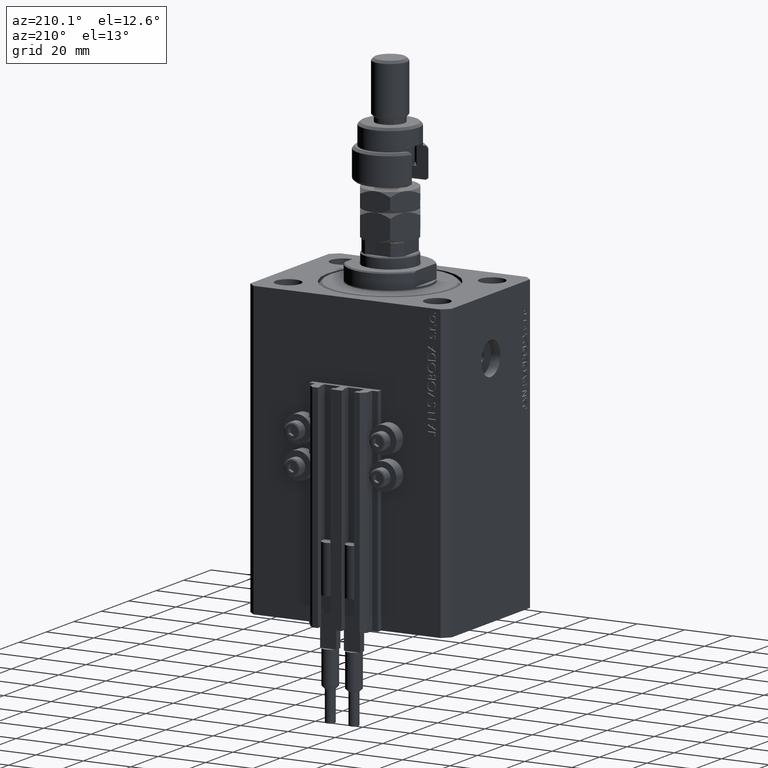
[diagram: clean part render]
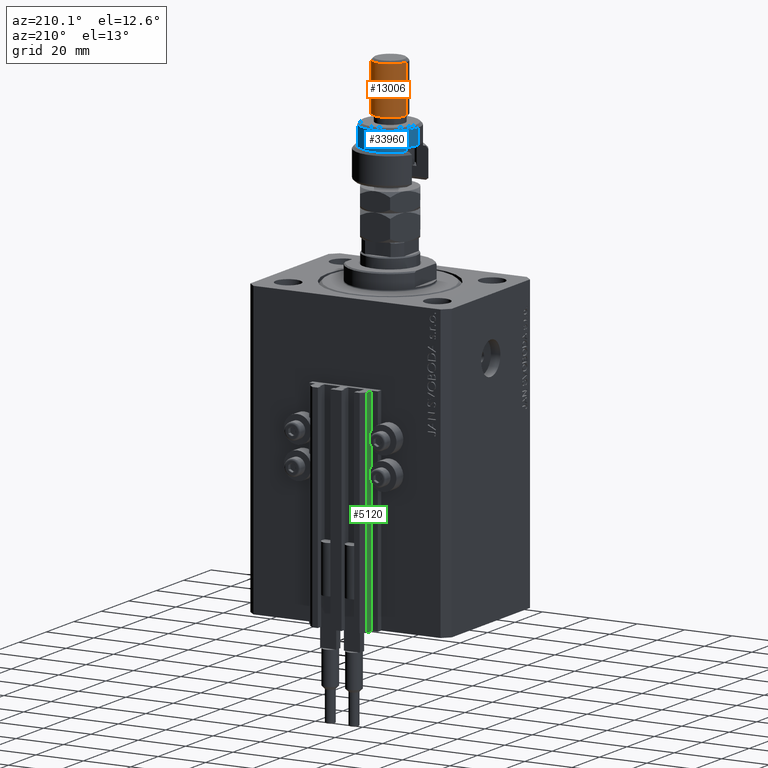
[diagram: same view with three faces highlighted in distinct colors, each labeled with its STEP entity id]
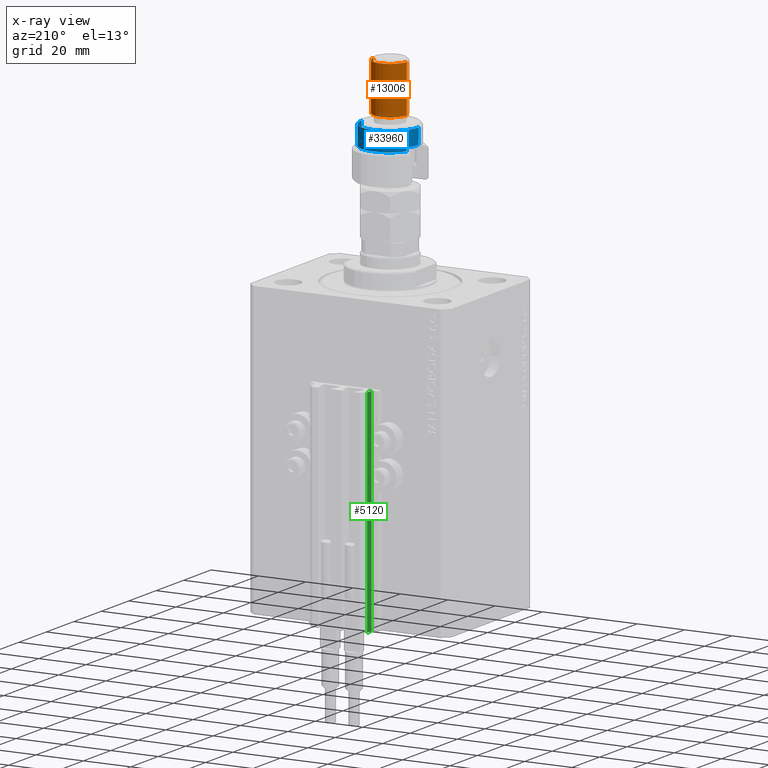
[diagram: x-ray of the same camera — body ghosted, the three highlighted faces saturated]
A machine part, auxiliary view with three faces highlighted in distinct colors.
The next image is the same camera in x-ray (body ghosted, the three faces saturated) — at least one of them is partly hidden behind the body in this view.
Their STEP definitions:

[orange] entity #13006 — the highlighted cylindrical surface (edge-blend (fillet) strip) has radius 7 mm, axis along (-0, -0, -1).
#2524 = ORIENTED_EDGE ( 'NONE', *, *, #10349, .T. ) ;
#4073 = CARTESIAN_POINT ( 'NONE',  ( 7.000000000000000000, 8.572527594031473190E-16, 46.00000000000000000 ) ) ;
#8599 = ORIENTED_EDGE ( 'NONE', *, *, #38279, .F. ) ;
#9313 = VECTOR ( 'NONE', #19811, 1000.000000000000000 ) ;
#10349 = EDGE_CURVE ( 'NONE', #23471, #14429, #39764, .T. ) ;
#11132 = ORIENTED_EDGE ( 'NONE', *, *, #47514, .T. ) ;
#12326 = VERTEX_POINT ( 'NONE', #42417 ) ;
#13006 = ADVANCED_FACE ( 'NONE', ( #13887 ), #13124, .T. ) ;
#13124 = CYLINDRICAL_SURFACE ( 'NONE', #15610, 7.000000000000000000 ) ;
#13887 = FACE_OUTER_BOUND ( 'NONE', #34713, .T. ) ;
#14429 = VERTEX_POINT ( 'NONE', #21506 ) ;
#15610 = AXIS2_PLACEMENT_3D ( 'NONE', #28847, #24971, #40688 ) ;
#19811 = DIRECTION ( 'NONE',  ( -0.000000000000000000, -0.000000000000000000, -1.000000000000000000 ) ) ;
#20486 = CIRCLE ( 'NONE', #23745, 7.000000000000000000 ) ;
#21506 = CARTESIAN_POINT ( 'NONE',  ( 7.000000000000000000, 8.572527594031473190E-16, 44.99999999999999289 ) ) ;
#23471 = VERTEX_POINT ( 'NONE', #44002 ) ;
#23745 = AXIS2_PLACEMENT_3D ( 'NONE', #42124, #27167, #50616 ) ;
#24885 = ORIENTED_EDGE ( 'NONE', *, *, #38313, .T. ) ;
#24946 = DIRECTION ( 'NONE',  ( -0.000000000000000000, -0.000000000000000000, -1.000000000000000000 ) ) ;
#24971 = DIRECTION ( 'NONE',  ( -0.000000000000000000, -0.000000000000000000, -1.000000000000000000 ) ) ;
#27167 = DIRECTION ( 'NONE',  ( -0.000000000000000000, -0.000000000000000000, 1.000000000000000000 ) ) ;
#28825 = LINE ( 'NONE', #35547, #31554 ) ;
#28847 = CARTESIAN_POINT ( 'NONE',  ( 0.000000000000000000, 0.000000000000000000, 46.00000000000000000 ) ) ;
#28988 = CARTESIAN_POINT ( 'NONE',  ( 7.000000000000000000, 8.572527594031473190E-16, 24.99999999999998934 ) ) ;
#31554 = VECTOR ( 'NONE', #24946, 1000.000000000000000 ) ;
#31937 = CARTESIAN_POINT ( 'NONE',  ( 0.000000000000000000, 0.000000000000000000, 44.99999999999999289 ) ) ;
#32183 = LINE ( 'NONE', #4073, #9313 ) ;
#34713 = EDGE_LOOP ( 'NONE', ( #2524, #24885, #11132, #8599 ) ) ;
#35547 = CARTESIAN_POINT ( 'NONE',  ( -7.000000000000000000, 0.000000000000000000, 46.00000000000000000 ) ) ;
#38101 = AXIS2_PLACEMENT_3D ( 'NONE', #31937, #43539, #43787 ) ;
#38279 = EDGE_CURVE ( 'NONE', #23471, #12326, #28825, .T. ) ;
#38313 = EDGE_CURVE ( 'NONE', #14429, #50169, #32183, .T. ) ;
#39764 = CIRCLE ( 'NONE', #38101, 7.000000000000000000 ) ;
#40688 = DIRECTION ( 'NONE',  ( -1.000000000000000000, 0.000000000000000000, 0.000000000000000000 ) ) ;
#42124 = CARTESIAN_POINT ( 'NONE',  ( 0.000000000000000000, 0.000000000000000000, 24.99999999999998934 ) ) ;
#42417 = CARTESIAN_POINT ( 'NONE',  ( -7.000000000000000000, 0.000000000000000000, 24.99999999999998934 ) ) ;
#43539 = DIRECTION ( 'NONE',  ( 0.000000000000000000, 0.000000000000000000, -1.000000000000000000 ) ) ;
#43787 = DIRECTION ( 'NONE',  ( 1.000000000000000000, 0.000000000000000000, 0.000000000000000000 ) ) ;
#44002 = CARTESIAN_POINT ( 'NONE',  ( -7.000000000000000000, 0.000000000000000000, 44.99999999999999289 ) ) ;
#47514 = EDGE_CURVE ( 'NONE', #50169, #12326, #20486, .T. ) ;
#50169 = VERTEX_POINT ( 'NONE', #28988 ) ;
#50616 = DIRECTION ( 'NONE',  ( 1.000000000000000000, 0.000000000000000000, 0.000000000000000000 ) ) ;

[blue] entity #33960 — the highlighted cylindrical surface (edge-blend (fillet) strip) has radius 12 mm, axis along (-0, -0, -1).
#2275 = EDGE_CURVE ( 'NONE', #15890, #18267, #19011, .T. ) ;
#2688 = DIRECTION ( 'NONE',  ( -0.000000000000000000, -0.000000000000000000, -1.000000000000000000 ) ) ;
#3046 = CARTESIAN_POINT ( 'NONE',  ( 0.000000000000000000, 0.000000000000000000, 14.50000000000000000 ) ) ;
#4819 = VECTOR ( 'NONE', #47348, 1000.000000000000000 ) ;
#4822 = AXIS2_PLACEMENT_3D ( 'NONE', #3046, #13913, #6920 ) ;
#6487 = CIRCLE ( 'NONE', #4822, 12.00000000000000178 ) ;
#6920 = DIRECTION ( 'NONE',  ( -1.000000000000000000, 0.000000000000000000, 0.000000000000000000 ) ) ;
#9563 = EDGE_CURVE ( 'NONE', #16416, #50962, #39724, .T. ) ;
#11940 = ORIENTED_EDGE ( 'NONE', *, *, #2275, .F. ) ;
#12331 = VECTOR ( 'NONE', #28594, 1000.000000000000000 ) ;
#12792 = EDGE_CURVE ( 'NONE', #37524, #16416, #12871, .T. ) ;
#12871 = LINE ( 'NONE', #47411, #12331 ) ;
#13913 = DIRECTION ( 'NONE',  ( 0.000000000000000000, 0.000000000000000000, -1.000000000000000000 ) ) ;
#14456 = CARTESIAN_POINT ( 'NONE',  ( 0.000000000000000000, 0.000000000000000000, 20.99999999999999645 ) ) ;
#14562 = DIRECTION ( 'NONE',  ( -1.000000000000000000, 0.000000000000000000, 0.000000000000000000 ) ) ;
#15890 = VERTEX_POINT ( 'NONE', #25815 ) ;
#16416 = VERTEX_POINT ( 'NONE', #36278 ) ;
#18267 = VERTEX_POINT ( 'NONE', #30214 ) ;
#18421 = CARTESIAN_POINT ( 'NONE',  ( 0.000000000000000000, 0.000000000000000000, 13.00000000000000000 ) ) ;
#19011 = LINE ( 'NONE', #49687, #20191 ) ;
#20044 = CYLINDRICAL_SURFACE ( 'NONE', #38125, 12.00000000000000178 ) ;
#20191 = VECTOR ( 'NONE', #42485, 1000.000000000000000 ) ;
#21629 = AXIS2_PLACEMENT_3D ( 'NONE', #18421, #26156, #33895 ) ;
#23199 = CARTESIAN_POINT ( 'NONE',  ( -10.39230484541326582, 5.999999999999998224, 14.50000000000000000 ) ) ;
#23444 = EDGE_CURVE ( 'NONE', #50962, #33485, #28280, .T. ) ;
#25815 = CARTESIAN_POINT ( 'NONE',  ( -12.00000000000000178, 0.000000000000000000, 20.99999999999999645 ) ) ;
#26156 = DIRECTION ( 'NONE',  ( 0.000000000000000000, 0.000000000000000000, 1.000000000000000000 ) ) ;
#28280 = LINE ( 'NONE', #40370, #4819 ) ;
#28551 = EDGE_LOOP ( 'NONE', ( #43710, #40463, #34682, #45006, #48851, #11940 ) ) ;
#28594 = DIRECTION ( 'NONE',  ( -0.000000000000000000, -0.000000000000000000, -1.000000000000000000 ) ) ;
#30214 = CARTESIAN_POINT ( 'NONE',  ( -12.00000000000000178, 0.000000000000000000, 14.50000000000000000 ) ) ;
#31143 = CARTESIAN_POINT ( 'NONE',  ( 0.000000000000000000, 0.000000000000000000, 22.00000000000000000 ) ) ;
#33167 = AXIS2_PLACEMENT_3D ( 'NONE', #14456, #42562, #34052 ) ;
#33448 = EDGE_CURVE ( 'NONE', #15890, #37524, #34837, .T. ) ;
#33485 = VERTEX_POINT ( 'NONE', #23199 ) ;
#33895 = DIRECTION ( 'NONE',  ( 1.000000000000000000, 0.000000000000000000, 0.000000000000000000 ) ) ;
#33960 = ADVANCED_FACE ( 'NONE', ( #39628 ), #20044, .T. ) ;
#34052 = DIRECTION ( 'NONE',  ( 1.000000000000000000, 0.000000000000000000, 0.000000000000000000 ) ) ;
#34682 = ORIENTED_EDGE ( 'NONE', *, *, #9563, .T. ) ;
#34837 = CIRCLE ( 'NONE', #33167, 12.00000000000000178 ) ;
#36278 = CARTESIAN_POINT ( 'NONE',  ( 12.00000000000000178, 1.469576158976824144E-15, 13.00000000000000000 ) ) ;
#37524 = VERTEX_POINT ( 'NONE', #46756 ) ;
#38125 = AXIS2_PLACEMENT_3D ( 'NONE', #31143, #2688, #14562 ) ;
#39628 = FACE_OUTER_BOUND ( 'NONE', #28551, .T. ) ;
#39724 = CIRCLE ( 'NONE', #21629, 12.00000000000000178 ) ;
#40370 = CARTESIAN_POINT ( 'NONE',  ( -10.39230484541326760, 6.000000000000000000, 22.00000000000000000 ) ) ;
#40463 = ORIENTED_EDGE ( 'NONE', *, *, #12792, .T. ) ;
#42485 = DIRECTION ( 'NONE',  ( -0.000000000000000000, -0.000000000000000000, -1.000000000000000000 ) ) ;
#42562 = DIRECTION ( 'NONE',  ( 0.000000000000000000, 0.000000000000000000, -1.000000000000000000 ) ) ;
#43710 = ORIENTED_EDGE ( 'NONE', *, *, #33448, .T. ) ;
#45006 = ORIENTED_EDGE ( 'NONE', *, *, #23444, .T. ) ;
#46756 = CARTESIAN_POINT ( 'NONE',  ( 12.00000000000000178, 1.469576158976824144E-15, 20.99999999999999645 ) ) ;
#47207 = EDGE_CURVE ( 'NONE', #18267, #33485, #6487, .T. ) ;
#47348 = DIRECTION ( 'NONE',  ( 0.000000000000000000, 0.000000000000000000, 1.000000000000000000 ) ) ;
#47411 = CARTESIAN_POINT ( 'NONE',  ( 12.00000000000000178, 1.469576158976824144E-15, 22.00000000000000000 ) ) ;
#48385 = CARTESIAN_POINT ( 'NONE',  ( -10.39230484541326760, 6.000000000000000000, 13.00000000000000000 ) ) ;
#48851 = ORIENTED_EDGE ( 'NONE', *, *, #47207, .F. ) ;
#49687 = CARTESIAN_POINT ( 'NONE',  ( -12.00000000000000178, 0.000000000000000000, 22.00000000000000000 ) ) ;
#50962 = VERTEX_POINT ( 'NONE', #48385 ) ;

[green] entity #5120 — the highlighted planar face has unit normal (-1, 0, 0).
#720 = EDGE_LOOP ( 'NONE', ( #45288, #2195, #30084, #3052 ) ) ;
#1356 = EDGE_CURVE ( 'NONE', #40151, #44923, #39666, .T. ) ;
#2195 = ORIENTED_EDGE ( 'NONE', *, *, #29133, .F. ) ;
#3052 = ORIENTED_EDGE ( 'NONE', *, *, #1356, .T. ) ;
#4812 = CARTESIAN_POINT ( 'NONE',  ( -12.00000000000000000, 37.49999999999999289, -123.0000000000000000 ) ) ;
#5120 = ADVANCED_FACE ( 'NONE', ( #41626 ), #13555, .T. ) ;
#7739 = EDGE_CURVE ( 'NONE', #34264, #40151, #35784, .T. ) ;
#12061 = DIRECTION ( 'NONE',  ( 0.000000000000000000, -1.000000000000000000, 0.000000000000000000 ) ) ;
#13555 = PLANE ( 'NONE',  #38430 ) ;
#16279 = DIRECTION ( 'NONE',  ( 0.000000000000000000, 0.000000000000000000, 1.000000000000000000 ) ) ;
#16671 = CARTESIAN_POINT ( 'NONE',  ( -12.00000000000000000, 37.49999999999999289, -33.00000000000000000 ) ) ;
#18240 = CARTESIAN_POINT ( 'NONE',  ( -12.00000000000000000, 34.19999999999999574, -123.0000000000000000 ) ) ;
#21183 = DIRECTION ( 'NONE',  ( 0.000000000000000000, -1.000000000000000000, 0.000000000000000000 ) ) ;
#23113 = VECTOR ( 'NONE', #16279, 1000.000000000000000 ) ;
#24196 = CARTESIAN_POINT ( 'NONE',  ( -12.00000000000000000, 34.19999999999999574, -123.0000000000000000 ) ) ;
#25811 = CARTESIAN_POINT ( 'NONE',  ( -12.00000000000000000, 37.49999999999999289, -33.00000000000000000 ) ) ;
#26153 = DIRECTION ( 'NONE',  ( 0.000000000000000000, 0.000000000000000000, 1.000000000000000000 ) ) ;
#28143 = VECTOR ( 'NONE', #12061, 1000.000000000000000 ) ;
#28144 = CARTESIAN_POINT ( 'NONE',  ( -12.00000000000000000, 37.49999999999999289, -123.0000000000000000 ) ) ;
#29013 = CARTESIAN_POINT ( 'NONE',  ( -12.00000000000000000, 37.49999999999999289, -123.0000000000000000 ) ) ;
#29133 = EDGE_CURVE ( 'NONE', #34264, #50731, #31507, .T. ) ;
#29778 = DIRECTION ( 'NONE',  ( -1.000000000000000000, 0.000000000000000000, 0.000000000000000000 ) ) ;
#30084 = ORIENTED_EDGE ( 'NONE', *, *, #7739, .T. ) ;
#31507 = LINE ( 'NONE', #28144, #23113 ) ;
#31556 = VECTOR ( 'NONE', #21183, 1000.000000000000000 ) ;
#33415 = EDGE_CURVE ( 'NONE', #50731, #44923, #36650, .T. ) ;
#34180 = VECTOR ( 'NONE', #47651, 1000.000000000000000 ) ;
#34264 = VERTEX_POINT ( 'NONE', #39272 ) ;
#35784 = LINE ( 'NONE', #4812, #28143 ) ;
#36650 = LINE ( 'NONE', #25811, #31556 ) ;
#38430 = AXIS2_PLACEMENT_3D ( 'NONE', #29013, #29778, #26153 ) ;
#39272 = CARTESIAN_POINT ( 'NONE',  ( -12.00000000000000000, 37.49999999999999289, -123.0000000000000000 ) ) ;
#39666 = LINE ( 'NONE', #24196, #34180 ) ;
#40151 = VERTEX_POINT ( 'NONE', #18240 ) ;
#41626 = FACE_OUTER_BOUND ( 'NONE', #720, .T. ) ;
#43613 = CARTESIAN_POINT ( 'NONE',  ( -12.00000000000000000, 34.19999999999999574, -33.00000000000000000 ) ) ;
#44923 = VERTEX_POINT ( 'NONE', #43613 ) ;
#45288 = ORIENTED_EDGE ( 'NONE', *, *, #33415, .F. ) ;
#47651 = DIRECTION ( 'NONE',  ( 0.000000000000000000, 0.000000000000000000, 1.000000000000000000 ) ) ;
#50731 = VERTEX_POINT ( 'NONE', #16671 ) ;